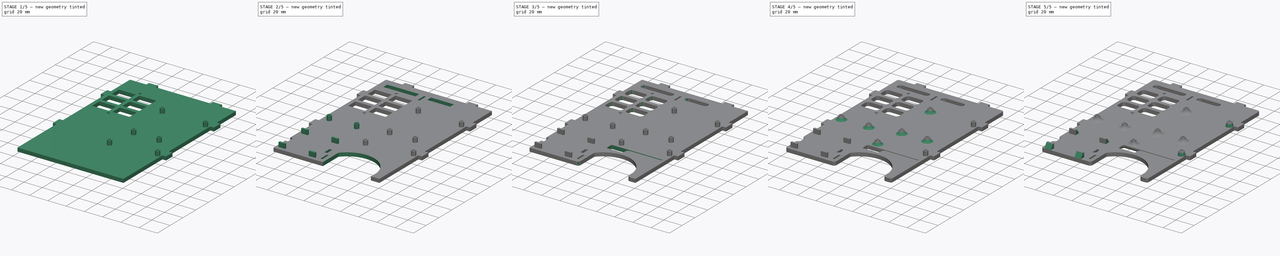
[diagram: build sequence overview — one tinted view per stage of 5, left to right]
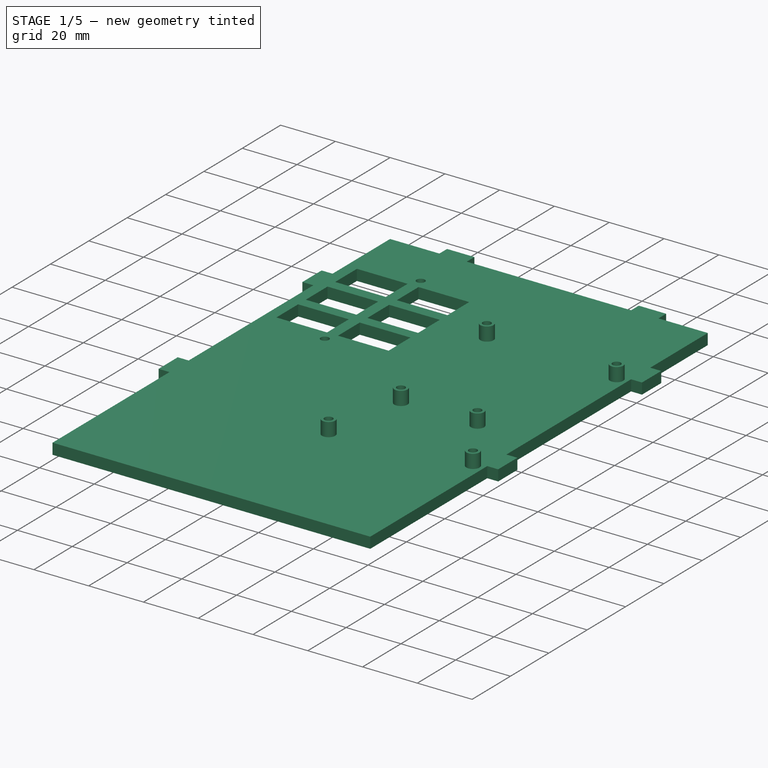
[diagram: stage 1 of 5 — iso view after this stage's code; geometry added in this stage tinted green]
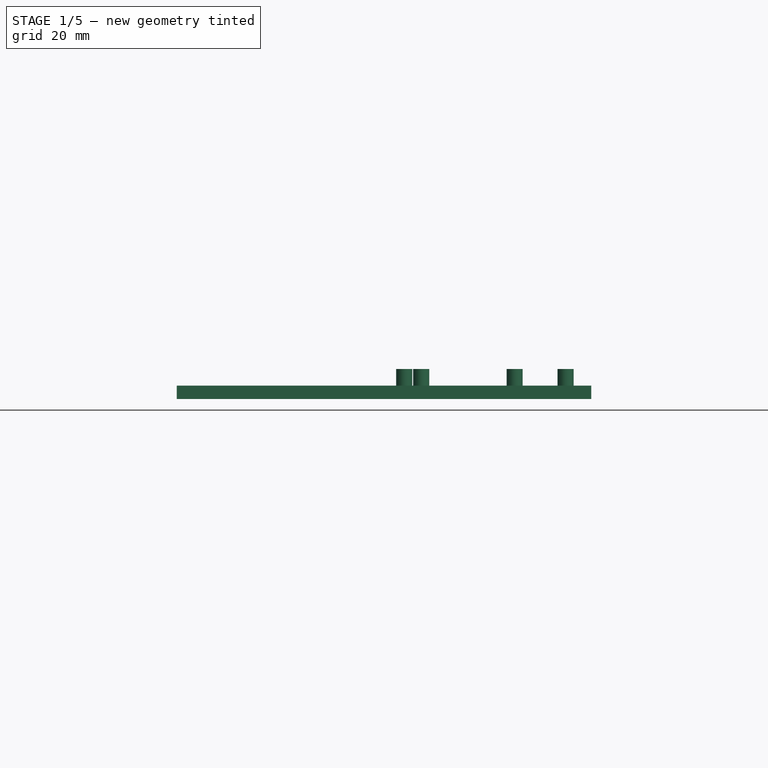
[diagram: stage 1 of 5 — front view after this stage's code; geometry added in this stage tinted green]
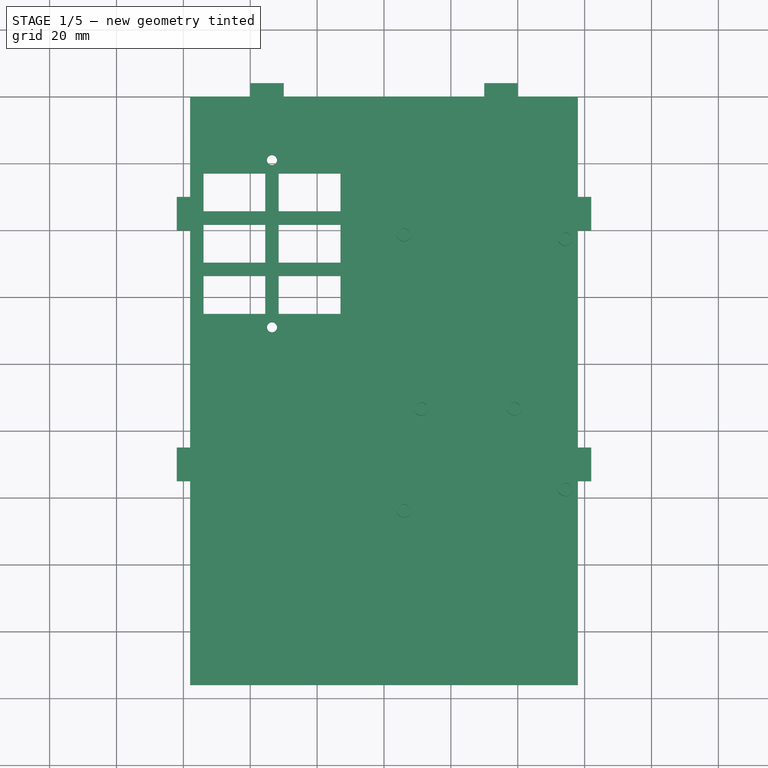
[diagram: stage 1 of 5 — top view after this stage's code; geometry added in this stage tinted green]
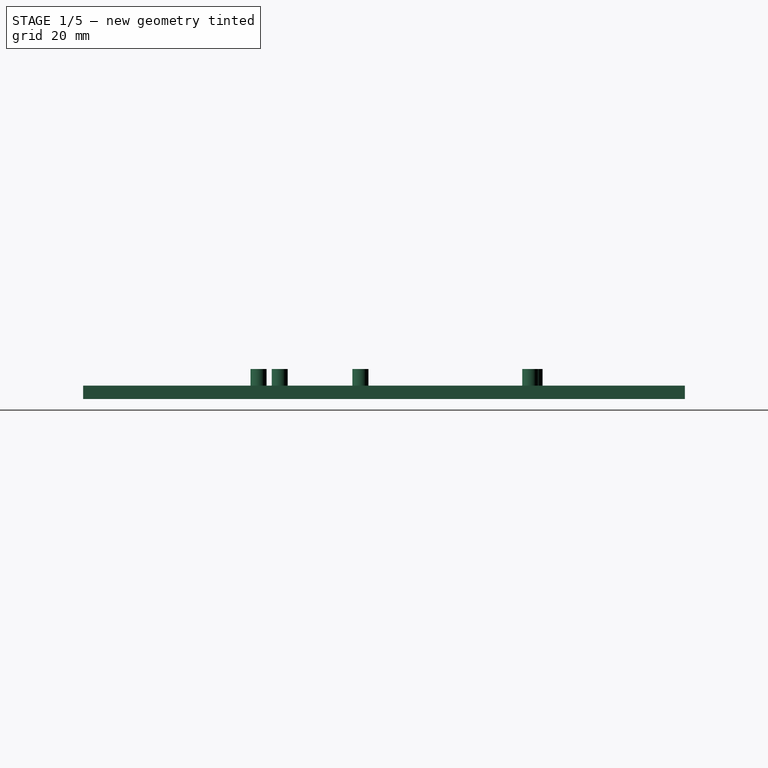
[diagram: stage 1 of 5 — right view after this stage's code; geometry added in this stage tinted green]
FCSTD DOCUMENT  (FreeCAD 0.18R16131 (Git))
Label: HBlock2_1_Alt
License: All rights reserved
LicenseURL: http://en.wikipedia.org/wiki/All_rights_reserved
objects: Sketcher::SketchObject×13, PartDesign::Fillet×9, PartDesign::Pocket×8, PartDesign::Plane×7, PartDesign::Pad×5, PartDesign::Draft×2, PartDesign::Body×1, App::Part×1, Part::FeaturePython×1
note: 59 computed .brp shape members not serialized (recipe doc carries the construction recipe); baked Part::Feature solids carry a one-line shape summary decoded from their .brp

FEATURE [Sketcher::SketchObject] Sketch
  MapMode = 5
  Support = -> [XY_Plane001]
  sketch-geometry (7):
    g0: LineSegment [constr] StartX=-62 StartY=0 StartZ=0 EndX=62 EndY=0 EndZ=0
    g1: LineSegment StartX=62 StartY=0 StartZ=0 EndX=62 EndY=124 EndZ=0
    g2: LineSegment StartX=62 StartY=124 StartZ=0 EndX=-62 EndY=124 EndZ=0
    g3: LineSegment StartX=-62 StartY=124 StartZ=0 EndX=-62 EndY=0 EndZ=0
    g4: LineSegment StartX=-62 StartY=0 StartZ=0 EndX=-62 EndY=-56 EndZ=0
    g5: LineSegment StartX=-62 StartY=-56 StartZ=0 EndX=62 EndY=-56 EndZ=0
    g6: LineSegment StartX=62 StartY=-56 StartZ=0 EndX=62 EndY=0 EndZ=0
  constraints (19):
    c: Coincident(g0,g1)
    c: Coincident(g1,g2)
    c: Coincident(g2,g3)
    c: Coincident(g3,g0)
    c: Horizontal(g0)
    c: Vertical(g1)
    c: Vertical(g3)
    c: PointOnObject(g0,g-1)
    c: Symmetric(g2,g1,g-2)
    c: Distance(g2) = 124
    c: Distance(g3) = 124
    c: Coincident(g4,g3)
    c: Vertical(g4)
    c: Coincident(g5,g4)
    c: Horizontal(g5)
    c: Coincident(g6,g5)
    c: Coincident(g6,g1)
    c: Vertical(g6)
    c: Distance(g4) = 56
FEATURE [PartDesign::Pad] Pad
  Length = 4
  Length2 = 100
  Midplane = true
  Profile = -> Sketch
  Type = 0
FEATURE [Sketcher::SketchObject] Sketch004
  MapMode = 5
  Support = -> [XY_Plane001]
  sketch-geometry (30):
    g0: LineSegment StartX=-58 StartY=5 StartZ=0 EndX=-62 EndY=5 EndZ=0
    g1: LineSegment StartX=-62 StartY=5 StartZ=0 EndX=-62 EndY=15 EndZ=0
    g2: LineSegment StartX=-62 StartY=15 StartZ=0 EndX=-58 EndY=15 EndZ=0
    g3: LineSegment StartX=-58 StartY=15 StartZ=0 EndX=-58 EndY=80 EndZ=0
    g4: LineSegment StartX=-58 StartY=80 StartZ=0 EndX=-62 EndY=80 EndZ=0
    g5: LineSegment StartX=-62 StartY=80 StartZ=0 EndX=-62 EndY=90 EndZ=0
    g6: LineSegment StartX=-62 StartY=90 StartZ=0 EndX=-58 EndY=90 EndZ=0
    g7: LineSegment StartX=-58 StartY=90 StartZ=0 EndX=-58 EndY=124 EndZ=0
    g8: LineSegment StartX=-58 StartY=124 StartZ=0 EndX=-88 EndY=124 EndZ=0
    g9: LineSegment StartX=-88 StartY=124 StartZ=0 EndX=-88 EndY=0 EndZ=0
    g10: LineSegment [constr] StartX=-88 StartY=0 StartZ=0 EndX=-58 EndY=0 EndZ=0
    g11: LineSegment StartX=-58 StartY=5 StartZ=0 EndX=-58 EndY=0 EndZ=0
    g12: LineSegment StartX=58 StartY=5 StartZ=0 EndX=62 EndY=5 EndZ=0
    g13: LineSegment StartX=62 StartY=5 StartZ=0 EndX=62 EndY=15 EndZ=0
    g14: LineSegment StartX=62 StartY=15 StartZ=0 EndX=58 EndY=15 EndZ=0
    g15: LineSegment StartX=58 StartY=15 StartZ=0 EndX=58 EndY=80 EndZ=0
    g16: LineSegment StartX=58 StartY=80 StartZ=0 EndX=62 EndY=80 EndZ=0
    g17: LineSegment StartX=62 StartY=80 StartZ=0 EndX=62 EndY=90 EndZ=0
    g18: LineSegment StartX=62 StartY=90 StartZ=0 EndX=58 EndY=90 EndZ=0
    g19: LineSegment StartX=58 StartY=90 StartZ=0 EndX=58 EndY=124 EndZ=0
    g20: LineSegment StartX=58 StartY=124 StartZ=0 EndX=88 EndY=124 EndZ=0
    g21: LineSegment StartX=88 StartY=124 StartZ=0 EndX=88 EndY=0 EndZ=0
    g22: LineSegment [constr] StartX=88 StartY=0 StartZ=0 EndX=58 EndY=0 EndZ=0
    g23: LineSegment StartX=58 StartY=5 StartZ=0 EndX=58 EndY=0 EndZ=0
    g24: LineSegment StartX=-88 StartY=0 StartZ=0 EndX=-88 EndY=-60 EndZ=0
    g25: LineSegment StartX=-88 StartY=-60 StartZ=0 EndX=-58 EndY=-60 EndZ=0
    g26: LineSegment StartX=-58 StartY=-60 StartZ=0 EndX=-58 EndY=0 EndZ=0
    g27: LineSegment StartX=58 StartY=0 StartZ=0 EndX=58 EndY=-60 EndZ=0
    g28: LineSegment StartX=58 StartY=-60 StartZ=0 EndX=88 EndY=-60 EndZ=0
    g29: LineSegment StartX=88 StartY=-60 StartZ=0 EndX=88 EndY=0 EndZ=0
  constraints (87):
    c: Coincident(g1,g0)
    c: Vertical(g1)
    c: Coincident(g2,g1)
    c: Horizontal(g2)
    c: Coincident(g3,g2)
    c: Vertical(g3)
    c: Coincident(g4,g3)
    c: Coincident(g5,g4)
    c: Vertical(g5)
    c: Coincident(g6,g5)
    c: Horizontal(g6)
    c: Coincident(g7,g6)
    c: Vertical(g7)
    c: Coincident(g8,g7)
    c: Horizontal(g8)
    c: Coincident(g9,g8)
    c: PointOnObject(g9,g-1)
    c: Vertical(g9)
    c: Coincident(g10,g9)
    c: Horizontal(g10)
    c: Horizontal(g0)
    c: Coincident(g11,g0)
    c: Coincident(g11,g10)
    c: Vertical(g11)
    c: Horizontal(g4)
    c: Equal(g0,g2)
    c: Equal(g2,g4)
    c: Equal(g4,g6)
    c: Equal(g5,g1)
    c: Distance(g6) = 4
    c: Distance(g5) = 10
    c: Distance(g11) = 5
    c: Distance(g7) = 34
    c: Distance(g8) = 30
    c: Distance(g9) = 124
    c: Coincident(g13,g12)
    c: Vertical(g13)
    c: Coincident(g14,g13)
    c: Horizontal(g14)
    c: Coincident(g15,g14)
    c: Vertical(g15)
    c: Coincident(g16,g15)
    c: Coincident(g17,g16)
    c: Vertical(g17)
    c: Coincident(g18,g17)
    c: Horizontal(g18)
    c: Coincident(g19,g18)
    c: Vertical(g19)
    c: Coincident(g20,g19)
    c: Horizontal(g20)
    c: Coincident(g21,g20)
    c: Vertical(g21)
    c: Coincident(g22,g21)
    c: Horizontal(g22)
    c: Horizontal(g12)
    c: Coincident(g23,g12)
    c: Coincident(g23,g22)
    c: Vertical(g23)
    c: Horizontal(g16)
    c: Equal(g12,g14)
    c: Equal(g14,g16)
    c: Equal(g16,g18)
    c: Equal(g17,g13)
    c: Distance(g18) = 4
    c: Distance(g17) = 10
    c: Distance(g23) = 5
    c: Distance(g19) = 34
    c: Distance(g20) = 30
    c: Distance(g21) = 124
    c: Symmetric(g22,g10,g-2)
    c: Distance(g10,g22) = 116
    c: Coincident(g24,g9)
    c: Vertical(g24)
    c: Coincident(g25,g24)
    c: Horizontal(g25)
    c: Coincident(g26,g25)
    c: Coincident(g26,g11)
    c: Vertical(g26)
    c: Coincident(g27,g23)
    c: Vertical(g27)
    c: Coincident(g28,g27)
    c: Horizontal(g28)
    c: Coincident(g29,g28)
    c: Coincident(g29,g21)
    c: Vertical(g29)
    c: Equal(g26,g27)
    c: Distance(g24) = 60
FEATURE [Sketcher::SketchObject] Sketch005
  MapMode = 5
  Support = -> [XY_Plane001]
  sketch-geometry (12):
    g0: LineSegment StartX=-62 StartY=120 StartZ=0 EndX=-40 EndY=120 EndZ=0
    g1: LineSegment StartX=-40 StartY=120 StartZ=0 EndX=-40 EndY=124 EndZ=0
    g2: LineSegment StartX=-40 StartY=124 StartZ=0 EndX=-30 EndY=124 EndZ=0
    g3: LineSegment StartX=-30 StartY=124 StartZ=0 EndX=-30 EndY=120 EndZ=0
    g4: LineSegment StartX=-30 StartY=120 StartZ=0 EndX=30 EndY=120 EndZ=0
    g5: LineSegment StartX=30 StartY=120 StartZ=0 EndX=30 EndY=124 EndZ=0
    g6: LineSegment StartX=30 StartY=124 StartZ=0 EndX=40 EndY=124 EndZ=0
    g7: LineSegment StartX=40 StartY=124 StartZ=0 EndX=40 EndY=120 EndZ=0
    g8: LineSegment StartX=40 StartY=120 StartZ=0 EndX=62 EndY=120 EndZ=0
    g9: LineSegment StartX=62 StartY=120 StartZ=0 EndX=62 EndY=130 EndZ=0
    g10: LineSegment StartX=62 StartY=130 StartZ=0 EndX=-62 EndY=130 EndZ=0
    g11: LineSegment StartX=-62 StartY=130 StartZ=0 EndX=-62 EndY=120 EndZ=0
  constraints (34):
    c: Horizontal(g0)
    c: Coincident(g1,g0)
    c: Vertical(g1)
    c: Coincident(g2,g1)
    c: Horizontal(g2)
    c: Coincident(g3,g2)
    c: Vertical(g3)
    c: Coincident(g4,g3)
    c: Coincident(g5,g4)
    c: Coincident(g6,g5)
    c: Horizontal(g6)
    c: Coincident(g7,g6)
    c: Vertical(g7)
    c: Coincident(g8,g7)
    c: Horizontal(g8)
    c: Coincident(g9,g8)
    c: Vertical(g9)
    c: Coincident(g10,g9)
    c: Coincident(g11,g10)
    c: Coincident(g11,g0)
    c: Vertical(g5)
    c: Vertical(g11)
    c: Equal(g1,g3)
    c: Equal(g3,g5)
    c: Equal(g5,g7)
    c: Equal(g2,g6)
    c: Distance(g11) = 10
    c: Distance(g1) = 4
    c: Distance(g2) = 10
    c: Symmetric(g3,g4,g-2)
    c: Distance(g4,g3) = 60
    c: Symmetric(g10,g9,g-2)
    c: Distance(g10) = 124
    c: DistanceY(g-1,g0) = 120
FEATURE [PartDesign::Pocket] Pocket001
  BaseFeature = -> Pad
  Length = 5
  Length2 = 100
  Midplane = true
  Profile = -> Sketch005
  Type = 1
FEATURE [PartDesign::Pocket] Pocket
  BaseFeature = -> Pocket001
  Length = 5
  Length2 = 100
  Midplane = true
  Profile = -> Sketch004
  Type = 1
FEATURE [PartDesign::Plane] DatumPlane  label="AtmegaPlane"
  AttachmentOffset = pos=(3.5,93,2) rot=(0,0,-1;1.5708rad)
  Length = 209.88
  MapMode = 5
  Placement = pos=(3.5,93,2) rot=(0,0,-1;1.5708rad)
  ResizeMode = 0
  Support = -> [XY_Plane001]
  Width = 153.88
FEATURE [Sketcher::SketchObject] Sketch006  label="AtmegaSketch"
  MapMode = 5
  Placement = pos=(3.5,93,2) rot=(0,0,-1;1.5708rad)
  Support = -> [DatumPlane]
  sketch-geometry (19):
    g0: LineSegment [constr] StartX=0 StartY=0 StartZ=0 EndX=101.6 EndY=0 EndZ=0
    g1: LineSegment [constr] StartX=101.6 StartY=0 StartZ=0 EndX=101.6 EndY=53.34 EndZ=0
    g2: LineSegment [constr] StartX=101.6 StartY=53.34 StartZ=0 EndX=0 EndY=53.34 EndZ=0
    g3: LineSegment [constr] StartX=0 StartY=53.34 StartZ=0 EndX=0 EndY=0 EndZ=0
    g4: Circle CenterX=13.97 CenterY=2.54 CenterZ=0 NormalX=0 NormalY=0 NormalZ=1 AngleXU=0 Radius=1.5
    g5: Circle CenterX=15.24 CenterY=50.8 CenterZ=0 NormalX=0 NormalY=0 NormalZ=1 AngleXU=0 Radius=1.5
    g6: Circle CenterX=90.17 CenterY=50.8 CenterZ=0 NormalX=0 NormalY=0 NormalZ=1 AngleXU=0 Radius=1.5
    g7: Circle CenterX=96.52 CenterY=2.54 CenterZ=0 NormalX=0 NormalY=0 NormalZ=1 AngleXU=0 Radius=1.5
    g8: Circle CenterX=66.04 CenterY=35.56 CenterZ=0 NormalX=0 NormalY=0 NormalZ=1 AngleXU=0 Radius=1.5
    g9: Circle CenterX=66.04 CenterY=7.62 CenterZ=0 NormalX=0 NormalY=0 NormalZ=1 AngleXU=0 Radius=1.5
    g10: LineSegment [constr] StartX=66.04 StartY=35.56 StartZ=0 EndX=66.04 EndY=7.62 EndZ=0
    g11: LineSegment [constr] StartX=15.24 StartY=50.8 StartZ=0 EndX=90.17 EndY=50.8 EndZ=0
    g12: LineSegment [constr] StartX=13.97 StartY=2.54 StartZ=0 EndX=96.52 EndY=2.54 EndZ=0
    g13: Circle CenterX=15.24 CenterY=50.8 CenterZ=0 NormalX=0 NormalY=0 NormalZ=1 AngleXU=0 Radius=2.4
    g14: Circle CenterX=13.97 CenterY=2.54 CenterZ=0 NormalX=0 NormalY=0 NormalZ=1 AngleXU=0 Radius=2.4
    g15: Circle CenterX=96.52 CenterY=2.54 CenterZ=0 NormalX=0 NormalY=0 NormalZ=1 AngleXU=0 Radius=2.4
    g16: Circle CenterX=66.04 CenterY=7.62 CenterZ=0 NormalX=0 NormalY=0 NormalZ=1 AngleXU=0 Radius=2.4
    g17: Circle CenterX=66.04 CenterY=35.56 CenterZ=0 NormalX=0 NormalY=0 NormalZ=1 AngleXU=0 Radius=2.4
    g18: Circle CenterX=90.17 CenterY=50.8 CenterZ=0 NormalX=0 NormalY=0 NormalZ=1 AngleXU=0 Radius=2.4
  constraints (47):
    c: Coincident(g0,g1)
    c: Coincident(g1,g2)
    c: Coincident(g2,g3)
    c: Coincident(g3,g0)
    c: Horizontal(g0)
    c: Horizontal(g2)
    c: Vertical(g1)
    c: Vertical(g3)
    c: Coincident(g0,g-1)
    c: Distance(g0) = 101.6
    c: Distance(g3) = 53.34
    c: Radius(g5) = 1.5
    c: Equal(g5,g8)
    c: Equal(g5,g6)
    c: Equal(g5,g9)
    c: Equal(g5,g7)
    c: Equal(g5,g4)
    c: DistanceX(g-2,g4) = 13.97
    c: DistanceX(g4,g5) = 1.27
    c: DistanceX(g5,g8) = 50.8
    c: Coincident(g10,g8)
    c: Coincident(g10,g9)
    c: Vertical(g10)
    c: DistanceX(g8,g6) = 24.13
    c: Coincident(g11,g5)
    c: Coincident(g11,g6)
    c: Horizontal(g11)
    c: Coincident(g12,g4)
    c: Coincident(g12,g7)
    c: Horizontal(g12)
    c: DistanceY(g8,g6) = 15.24
    c: Distance(g10) = 27.94
    c: DistanceY(g7,g9) = 5.08
    c: DistanceY(g0,g7) = 2.54
    c: DistanceX(g-2,g7) = 96.52
    c: Coincident(g13,g5)
    c: Coincident(g14,g4)
    c: Coincident(g15,g7)
    c: Coincident(g16,g9)
    c: Coincident(g17,g8)
    c: Coincident(g18,g6)
    c: Equal(g18,g17)
    c: Equal(g17,g16)
    c: Equal(g16,g15)
    c: Equal(g15,g14)
    c: Equal(g14,g13)
    c: Radius(g14) = 2.4
FEATURE [PartDesign::Pad] Pad001  label="AtmegaPad"
  BaseFeature = -> Pocket
  Length = 5
  Length2 = 100
  Profile = -> Sketch006
  Type = 0
FEATURE [PartDesign::Plane] DatumPlane001  label="RelayPlane"
  AttachmentOffset = pos=(-56,106,0) rot=(0,0,-1;1.5708rad)
  Length = 209.88
  MapMode = 5
  Placement = pos=(-56,106,0) rot=(0,0,-1;1.5708rad)
  ResizeMode = 0
  Support = -> [XY_Plane001]
  Width = 153.88
FEATURE [Sketcher::SketchObject] Sketch007  label="RelaySketch"
  MapMode = 5
  Placement = pos=(-56,106,0) rot=(0,0,-1;1.5708rad)
  Support = -> [DatumPlane001]
  sketch-geometry (37):
    g0: LineSegment [constr] StartX=0 StartY=0 StartZ=0 EndX=60 EndY=0 EndZ=0
    g1: LineSegment [constr] StartX=60 StartY=0 StartZ=0 EndX=60 EndY=45 EndZ=0
    g2: LineSegment [constr] StartX=60 StartY=45 StartZ=0 EndX=0 EndY=45 EndZ=0
    g3: LineSegment [constr] StartX=0 StartY=45 StartZ=0 EndX=0 EndY=0 EndZ=0
    g4: Circle CenterX=5 CenterY=22.5 CenterZ=0 NormalX=0 NormalY=0 NormalZ=1 AngleXU=0 Radius=1.5
    g5: Circle CenterX=55 CenterY=22.5 CenterZ=0 NormalX=0 NormalY=0 NormalZ=1 AngleXU=0 Radius=1.5
    g6: LineSegment [constr] StartX=5 StartY=22.5 StartZ=0 EndX=55 EndY=22.5 EndZ=0
    g7: LineSegment StartX=9 StartY=43 StartZ=0 EndX=20.3333 EndY=43 EndZ=0
    g8: LineSegment StartX=20.3333 StartY=43 StartZ=0 EndX=20.3333 EndY=24.5 EndZ=0
    g9: LineSegment StartX=20.3333 StartY=24.5 StartZ=0 EndX=9 EndY=24.5 EndZ=0
    g10: LineSegment StartX=9 StartY=24.5 StartZ=0 EndX=9 EndY=43 EndZ=0
    g11: LineSegment StartX=24.3333 StartY=43 StartZ=0 EndX=35.6667 EndY=43 EndZ=0
    g12: LineSegment StartX=35.6667 StartY=43 StartZ=0 EndX=35.6667 EndY=24.5 EndZ=0
    g13: LineSegment StartX=35.6667 StartY=24.5 StartZ=0 EndX=24.3333 EndY=24.5 EndZ=0
    g14: LineSegment StartX=24.3333 StartY=24.5 StartZ=0 EndX=24.3333 EndY=43 EndZ=0
    g15: LineSegment StartX=39.6667 StartY=43 StartZ=0 EndX=51 EndY=43 EndZ=0
    g16: LineSegment StartX=51 StartY=43 StartZ=0 EndX=51 EndY=24.5 EndZ=0
    g17: LineSegment StartX=51 StartY=24.5 StartZ=0 EndX=39.6667 EndY=24.5 EndZ=0
    g18: LineSegment StartX=39.6667 StartY=24.5 StartZ=0 EndX=39.6667 EndY=43 EndZ=0
    g19: LineSegment StartX=9 StartY=20.5 StartZ=0 EndX=20.3333 EndY=20.5 EndZ=0
    g20: LineSegment StartX=20.3333 StartY=20.5 StartZ=0 EndX=20.3333 EndY=2 EndZ=0
    g21: LineSegment StartX=20.3333 StartY=2 StartZ=0 EndX=9 EndY=2 EndZ=0
    g22: LineSegment StartX=9 StartY=2 StartZ=0 EndX=9 EndY=20.5 EndZ=0
    g23: LineSegment StartX=24.3333 StartY=20.5 StartZ=0 EndX=35.6667 EndY=20.5 EndZ=0
    g24: LineSegment StartX=35.6667 StartY=20.5 StartZ=0 EndX=35.6667 EndY=2 EndZ=0
    g25: LineSegment StartX=35.6667 StartY=2 StartZ=0 EndX=24.3333 EndY=2 EndZ=0
    g26: LineSegment StartX=24.3333 StartY=2 StartZ=0 EndX=24.3333 EndY=20.5 EndZ=0
    g27: LineSegment StartX=39.6667 StartY=20.5 StartZ=0 EndX=51 EndY=20.5 EndZ=0
    g28: LineSegment StartX=51 StartY=20.5 StartZ=0 EndX=51 EndY=2 EndZ=0
    g29: LineSegment StartX=51 StartY=2 StartZ=0 EndX=39.6667 EndY=2 EndZ=0
    g30: LineSegment StartX=39.6667 StartY=2 StartZ=0 EndX=39.6667 EndY=20.5 EndZ=0
    g31: LineSegment [constr] StartX=20.3333 StartY=24.5 StartZ=0 EndX=24.3333 EndY=24.5 EndZ=0
    g32: LineSegment [constr] StartX=35.6667 StartY=24.5 StartZ=0 EndX=39.6667 EndY=24.5 EndZ=0
    g33: LineSegment [constr] StartX=35.6667 StartY=20.5 StartZ=0 EndX=39.6667 EndY=20.5 EndZ=0
    g34: LineSegment [constr] StartX=20.3333 StartY=20.5 StartZ=0 EndX=24.3333 EndY=20.5 EndZ=0
    g35: LineSegment [constr] StartX=35.6667 StartY=20.5 StartZ=0 EndX=35.6667 EndY=22.5 EndZ=0
    g36: LineSegment [constr] StartX=35.6667 StartY=2 StartZ=0 EndX=35.6667 EndY=0 EndZ=0
  constraints (104):
    c: Coincident(g0,g1)
    c: Coincident(g1,g2)
    c: Coincident(g2,g3)
    c: Coincident(g3,g0)
    c: Horizontal(g0)
    c: Horizontal(g2)
    c: Vertical(g1)
    c: Vertical(g3)
    c: Coincident(g0,g-1)
    c: Coincident(g6,g4)
    c: Coincident(g6,g5)
    c: Horizontal(g6)
    c: Equal(g4,g5)
    c: Radius(g4) = 1.5
    c: Distance(g3) = 45
    c: Distance(g2) = 60
    c: Distance(g6) = 50
    c: Distance(g4,g3) = 5
    c: Distance(g4,g0) = 22.5
    c: Coincident(g7,g8)
    c: Coincident(g8,g9)
    c: Coincident(g9,g10)
    c: Coincident(g10,g7)
    c: Horizontal(g7)
    c: Horizontal(g9)
    c: Vertical(g8)
    c: Vertical(g10)
    c: Coincident(g11,g12)
    c: Coincident(g12,g13)
    c: Coincident(g13,g14)
    c: Coincident(g14,g11)
    c: Horizontal(g11)
    c: Horizontal(g13)
    c: Vertical(g12)
    c: Vertical(g14)
    c: Coincident(g15,g16)
    c: Coincident(g16,g17)
    c: Coincident(g17,g18)
    c: Coincident(g18,g15)
    c: Horizontal(g15)
    c: Horizontal(g17)
    c: Vertical(g16)
    c: Vertical(g18)
    c: Coincident(g19,g20)
    c: Coincident(g20,g21)
    c: Coincident(g21,g22)
    c: Coincident(g22,g19)
    c: Horizontal(g19)
    c: Horizontal(g21)
    c: Vertical(g20)
    c: Vertical(g22)
    c: Coincident(g23,g24)
    c: Coincident(g24,g25)
    c: Coincident(g25,g26)
    c: Coincident(g26,g23)
    c: Horizontal(g23)
    c: Horizontal(g25)
    c: Vertical(g24)
    c: Vertical(g26)
    c: Coincident(g27,g28)
    c: Coincident(g28,g29)
    c: Coincident(g29,g30)
    c: Coincident(g30,g27)
    c: Horizontal(g27)
    c: Horizontal(g29)
    c: Vertical(g28)
    c: Vertical(g30)
    c: Equal(g19,g9)
    c: Equal(g9,g13)
    c: Equal(g13,g23)
    c: Equal(g23,g17)
    c: Equal(g17,g27)
    c: Equal(g10,g22)
    c: Equal(g22,g14)
    c: Equal(g14,g26)
    c: Equal(g26,g18)
    c: Equal(g18,g30)
    c: Coincident(g31,g8)
    c: Coincident(g31,g13)
    c: Horizontal(g31)
    c: Coincident(g32,g12)
    c: Coincident(g32,g17)
    c: Coincident(g33,g23)
    c: Coincident(g33,g27)
    c: Coincident(g34,g19)
    c: Coincident(g34,g23)
    c: Horizontal(g34)
    c: Horizontal(g32)
    c: Horizontal(g33)
    c: Equal(g31,g32)
    c: Equal(g32,g33)
    c: Equal(g33,g34)
    c: Symmetric(g19,g9,g6)
    c: Coincident(g35,g23)
    c: PointOnObject(g35,g6)
    c: Vertical(g35)
    c: Coincident(g36,g24)
    c: PointOnObject(g36,g0)
    c: Vertical(g36)
    c: Equal(g35,g36)
    c: Distance(g34) = 4
    c: Distance(g36) = 2
    c: DistanceX(g4,g19) = 4
    c: DistanceX(g27,g5) = 4
FEATURE [PartDesign::Pocket] Pocket002  label="RelayPocket"
  BaseFeature = -> Pad001
  Length = 5
  Length2 = 100
  Midplane = true
  Profile = -> Sketch007
  Type = 1
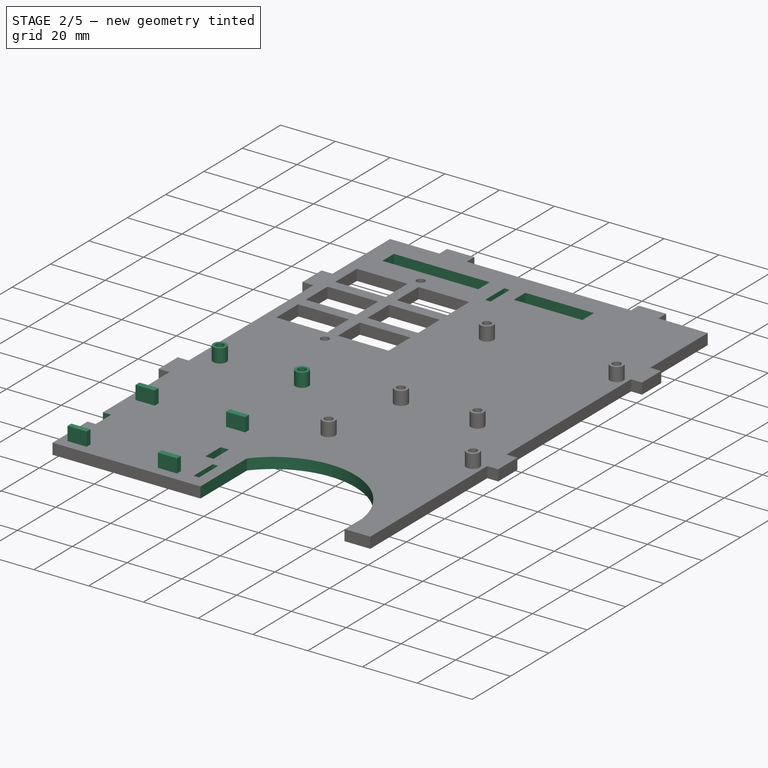
[diagram: stage 2 of 5 — iso view after this stage's code; geometry added in this stage tinted green]
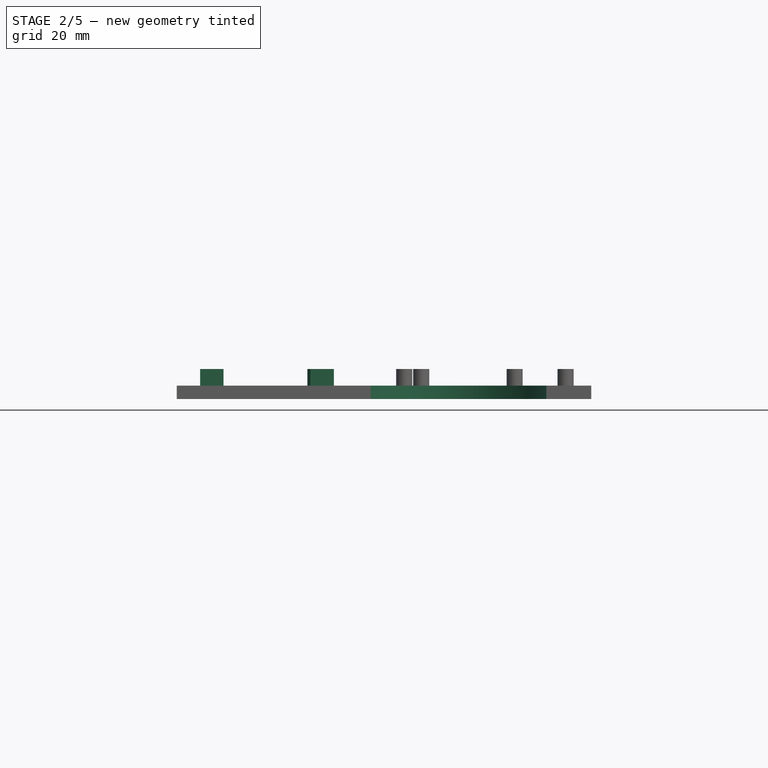
[diagram: stage 2 of 5 — front view after this stage's code; geometry added in this stage tinted green]
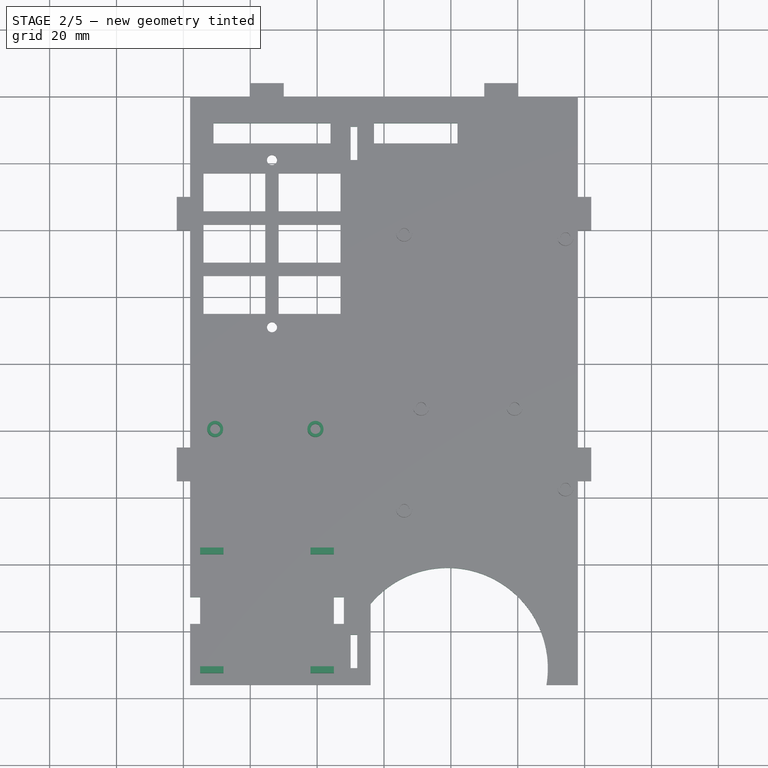
[diagram: stage 2 of 5 — top view after this stage's code; geometry added in this stage tinted green]
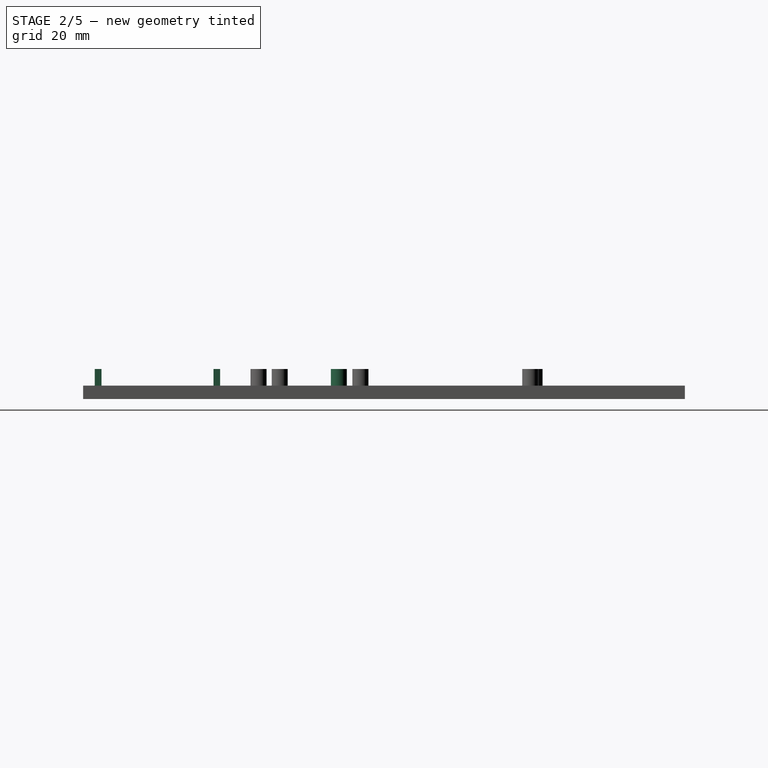
[diagram: stage 2 of 5 — right view after this stage's code; geometry added in this stage tinted green]
FEATURE [PartDesign::Plane] DatumPlane002  label="VRPlane"
  AttachmentOffset = pos=(-53,6,2) rot=(0,0,1;0rad)
  Length = 153.88
  MapMode = 5
  Placement = pos=(-53,6,2) rot=(0,0,1;0rad)
  ResizeMode = 0
  Support = -> [XY_Plane001]
  Width = 209.88
FEATURE [Sketcher::SketchObject] Sketch008  label="VRSketch"
  MapMode = 5
  Placement = pos=(-53,6,2) rot=(0,0,1;0rad)
  Support = -> [DatumPlane002]
  sketch-geometry (9):
    g0: LineSegment [constr] StartX=0 StartY=0 StartZ=0 EndX=35 EndY=0 EndZ=0
    g1: LineSegment [constr] StartX=35 StartY=0 StartZ=0 EndX=35 EndY=17 EndZ=0
    g2: LineSegment [constr] StartX=35 StartY=17 StartZ=0 EndX=0 EndY=17 EndZ=0
    g3: LineSegment [constr] StartX=0 StartY=17 StartZ=0 EndX=0 EndY=0 EndZ=0
    g4: Circle CenterX=2.5 CenterY=14.5 CenterZ=0 NormalX=0 NormalY=0 NormalZ=1 AngleXU=0 Radius=1.5
    g5: Circle CenterX=32.5 CenterY=14.5 CenterZ=0 NormalX=0 NormalY=0 NormalZ=1 AngleXU=0 Radius=1.5
    g6: LineSegment [constr] StartX=2.5 StartY=14.5 StartZ=0 EndX=32.5 EndY=14.5 EndZ=0
    g7: Circle CenterX=2.5 CenterY=14.5 CenterZ=0 NormalX=0 NormalY=0 NormalZ=1 AngleXU=0 Radius=2.4
    g8: Circle CenterX=32.5 CenterY=14.5 CenterZ=0 NormalX=0 NormalY=0 NormalZ=1 AngleXU=0 Radius=2.4
  constraints (23):
    c: Coincident(g0,g1)
    c: Coincident(g1,g2)
    c: Coincident(g2,g3)
    c: Coincident(g3,g0)
    c: Horizontal(g0)
    c: Horizontal(g2)
    c: Vertical(g1)
    c: Vertical(g3)
    c: Coincident(g0,g-1)
    c: Distance(g3) = 17
    c: Distance(g2) = 35
    c: Coincident(g6,g4)
    c: Coincident(g6,g5)
    c: Horizontal(g6)
    c: Distance(g6) = 30
    c: Equal(g4,g5)
    c: Radius(g4) = 1.5
    c: Distance(g4,g2) = 2.5
    c: Distance(g4,g3) = 2.5
    c: Coincident(g7,g4)
    c: Coincident(g8,g5)
    c: Equal(g7,g8)
    c: Radius(g7) = 2.4
FEATURE [PartDesign::Pad] Pad002  label="VRPad"
  BaseFeature = -> Pocket002
  Length = 5
  Length2 = 100
  Profile = -> Sketch008
  Type = 0
FEATURE [PartDesign::Plane] DatumPlane003  label="TFPlane"
  AttachmentOffset = pos=(-55,-17,2) rot=(0,0,-1;1.5708rad)
  Length = 209.88
  MapMode = 5
  Placement = pos=(-55,-17,2) rot=(0,0,-1;1.5708rad)
  ResizeMode = 0
  Support = -> [XY_Plane001]
  Width = 153.88
FEATURE [Sketcher::SketchObject] Sketch009  label="TFHolesSketch"
  MapMode = 5
  Placement = pos=(-55,-17,2) rot=(0,0,-1;1.5708rad)
  Support = -> [DatumPlane003]
  sketch-geometry (15):
    g0: LineSegment [constr] StartX=0 StartY=0 StartZ=0 EndX=33.5 EndY=0 EndZ=0
    g1: LineSegment [constr] StartX=33.5 StartY=0 StartZ=0 EndX=33.5 EndY=40 EndZ=0
    g2: LineSegment [constr] StartX=33.5 StartY=40 StartZ=0 EndX=0 EndY=40 EndZ=0
    g3: LineSegment [constr] StartX=0 StartY=40 StartZ=0 EndX=0 EndY=0 EndZ=0
    g4: LineSegment StartX=12.75 StartY=40 StartZ=0 EndX=20.75 EndY=40 EndZ=0
    g5: LineSegment StartX=20.75 StartY=40 StartZ=0 EndX=20.75 EndY=43 EndZ=0
    g6: LineSegment StartX=20.75 StartY=43 StartZ=0 EndX=12.75 EndY=43 EndZ=0
    g7: LineSegment StartX=12.75 StartY=43 StartZ=0 EndX=12.75 EndY=40 EndZ=0
    g8: LineSegment StartX=12.75 StartY=0 StartZ=0 EndX=20.75 EndY=0 EndZ=0
    g9: LineSegment StartX=20.75 StartY=0 StartZ=0 EndX=20.75 EndY=-3 EndZ=0
    g10: LineSegment StartX=20.75 StartY=-3 StartZ=0 EndX=12.75 EndY=-3 EndZ=0
    g11: LineSegment StartX=12.75 StartY=-3 StartZ=0 EndX=12.75 EndY=0 EndZ=0
    g12: LineSegment [constr] StartX=12.75 StartY=40 StartZ=0 EndX=0 EndY=0 EndZ=0
    g13: LineSegment [constr] StartX=20.75 StartY=40 StartZ=0 EndX=33.5 EndY=0 EndZ=0
    g14: LineSegment [constr] StartX=12.75 StartY=40 StartZ=0 EndX=12.75 EndY=0 EndZ=0
  constraints (41):
    c: Coincident(g0,g1)
    c: Coincident(g1,g2)
    c: Coincident(g2,g3)
    c: Coincident(g3,g0)
    c: Horizontal(g0)
    c: Horizontal(g2)
    c: Vertical(g1)
    c: Vertical(g3)
    c: Distance(g3) = 40
    c: Distance(g2) = 33.5
    c: Coincident(g0,g-1)
    c: Coincident(g4,g5)
    c: Coincident(g5,g6)
    c: Coincident(g6,g7)
    c: Coincident(g7,g4)
    c: Horizontal(g4)
    c: Horizontal(g6)
    c: Vertical(g5)
    c: Vertical(g7)
    c: PointOnObject(g4,g2)
    c: Coincident(g8,g9)
    c: Coincident(g9,g10)
    c: Coincident(g10,g11)
    c: Coincident(g11,g8)
    c: Horizontal(g8)
    c: Horizontal(g10)
    c: Vertical(g9)
    c: Vertical(g11)
    c: PointOnObject(g8,g0)
    c: Equal(g4,g8)
    c: Distance(g8) = 8
    c: Equal(g11,g7)
    c: Distance(g7) = 3
    c: Coincident(g12,g4)
    c: Coincident(g12,g-1)
    c: Coincident(g13,g4)
    c: Coincident(g13,g0)
    c: Equal(g12,g13)
    c: Coincident(g14,g4)
    c: Coincident(g14,g8)
    c: Vertical(g14)
FEATURE [PartDesign::Pocket] Pocket003  label="TFHolesPocket"
  BaseFeature = -> Pad002
  Length = 5
  Length2 = 100
  Profile = -> Sketch009
  Type = 1
FEATURE [Sketcher::SketchObject] Sketch010  label="TFClipSketch"
  MapMode = 5
  Placement = pos=(-55,-17,2) rot=(0,0,-1;1.5708rad)
  Support = -> [DatumPlane003]
  sketch-geometry (20):
    g0: LineSegment [constr] StartX=0 StartY=0 StartZ=0 EndX=33.5 EndY=0 EndZ=0
    g1: LineSegment [constr] StartX=33.5 StartY=0 StartZ=0 EndX=33.5 EndY=40 EndZ=0
    g2: LineSegment [constr] StartX=33.5 StartY=40 StartZ=0 EndX=0 EndY=40 EndZ=0
    g3: LineSegment [constr] StartX=0 StartY=40 StartZ=0 EndX=0 EndY=0 EndZ=0
    g4: LineSegment StartX=0 StartY=40 StartZ=0 EndX=-2 EndY=40 EndZ=0
    g5: LineSegment StartX=-2 StartY=40 StartZ=0 EndX=-2 EndY=33 EndZ=0
    g6: LineSegment StartX=-2 StartY=33 StartZ=0 EndX=0 EndY=33 EndZ=0
    g7: LineSegment StartX=0 StartY=33 StartZ=0 EndX=0 EndY=40 EndZ=0
    g8: LineSegment StartX=0 StartY=0 StartZ=0 EndX=-2 EndY=0 EndZ=0
    g9: LineSegment StartX=-2 StartY=0 StartZ=0 EndX=-2 EndY=7 EndZ=0
    g10: LineSegment StartX=-2 StartY=7 StartZ=0 EndX=0 EndY=7 EndZ=0
    g11: LineSegment StartX=0 StartY=7 StartZ=0 EndX=0 EndY=0 EndZ=0
    g12: LineSegment StartX=33.5 StartY=40 StartZ=0 EndX=35.5 EndY=40 EndZ=0
    g13: LineSegment StartX=35.5 StartY=40 StartZ=0 EndX=35.5 EndY=33 EndZ=0
    g14: LineSegment StartX=35.5 StartY=33 StartZ=0 EndX=33.5 EndY=33 EndZ=0
    g15: LineSegment StartX=33.5 StartY=33 StartZ=0 EndX=33.5 EndY=40 EndZ=0
    g16: LineSegment StartX=33.5 StartY=0 StartZ=0 EndX=35.5 EndY=0 EndZ=0
    g17: LineSegment StartX=35.5 StartY=0 StartZ=0 EndX=35.5 EndY=7 EndZ=0
    g18: LineSegment StartX=35.5 StartY=7 StartZ=0 EndX=33.5 EndY=7 EndZ=0
    g19: LineSegment StartX=33.5 StartY=7 StartZ=0 EndX=33.5 EndY=0 EndZ=0
  constraints (55):
    c: Coincident(g0,g1)
    c: Coincident(g1,g2)
    c: Coincident(g2,g3)
    c: Coincident(g3,g0)
    c: Horizontal(g0)
    c: Horizontal(g2)
    c: Vertical(g1)
    c: Vertical(g3)
    c: Coincident(g0,g-1)
    c: Distance(g2) = 33.5
    c: Distance(g1) = 40
    c: Coincident(g4,g5)
    c: Coincident(g5,g6)
    c: Coincident(g6,g7)
    c: Coincident(g7,g4)
    c: Horizontal(g4)
    c: Horizontal(g6)
    c: Vertical(g5)
    c: Vertical(g7)
    c: Coincident(g4,g2)
    c: Coincident(g8,g9)
    c: Coincident(g9,g10)
    c: Coincident(g10,g11)
    c: Coincident(g11,g8)
    c: Horizontal(g8)
    c: Horizontal(g10)
    c: Vertical(g9)
    c: Vertical(g11)
    c: Coincident(g8,g-1)
    c: Coincident(g12,g13)
    c: Coincident(g13,g14)
    c: Coincident(g14,g15)
    c: Coincident(g15,g12)
    c: Horizontal(g12)
    c: Horizontal(g14)
    c: Vertical(g13)
    c: Vertical(g15)
    c: Coincident(g12,g1)
    c: Coincident(g16,g17)
    c: Coincident(g17,g18)
    c: Coincident(g18,g19)
    c: Coincident(g19,g16)
    c: Horizontal(g16)
    c: Horizontal(g18)
    c: Vertical(g17)
    c: Vertical(g19)
    c: Coincident(g16,g0)
    c: Equal(g10,g18)
    c: Equal(g18,g14)
    c: Equal(g14,g6)
    c: Equal(g5,g9)
    c: Equal(g9,g17)
    c: Equal(g17,g13)
    c: Distance(g5) = 7
    c: Distance(g4) = 2
FEATURE [PartDesign::Pad] Pad003  label="TFClipPad"
  BaseFeature = -> Pocket003
  Length = 5
  Length2 = 100
  Profile = -> Sketch010
  Type = 0
FEATURE [PartDesign::Plane] DatumPlane004  label="SeparatorPlane"
  AttachmentOffset = pos=(-10,-60,2) rot=(0,0,1;0rad)
  Length = 154.21
  MapMode = 5
  Placement = pos=(-10,-60,2) rot=(0,0,1;0rad)
  ResizeMode = 0
  Support = -> [XY_Plane001]
  Width = 214.21
FEATURE [Sketcher::SketchObject] Sketch011  label="SeparatorCutSketch"
  MapMode = 5
  Placement = pos=(-10,-60,2) rot=(0,0,1;0rad)
  Support = -> [DatumPlane004]
  sketch-geometry (4):
    g0: LineSegment StartX=0 StartY=0 StartZ=0 EndX=4 EndY=0 EndZ=0
    g1: LineSegment StartX=4 StartY=0 StartZ=0 EndX=4 EndY=180 EndZ=0
    g2: LineSegment StartX=4 StartY=180 StartZ=0 EndX=0 EndY=180 EndZ=0
    g3: LineSegment StartX=0 StartY=180 StartZ=0 EndX=0 EndY=0 EndZ=0
  constraints (11):
    c: Coincident(g0,g1)
    c: Coincident(g1,g2)
    c: Coincident(g2,g3)
    c: Coincident(g3,g0)
    c: Horizontal(g0)
    c: Horizontal(g2)
    c: Vertical(g1)
    c: Vertical(g3)
    c: Coincident(g0,g-1)
    c: Distance(g2) = 4
    c: Distance(g3) = 180
FEATURE [Sketcher::SketchObject] Sketch012  label="SeparatorClipHolesSketch"
  MapMode = 5
  Placement = pos=(-10,-60,2) rot=(0,0,1;0rad)
  Support = -> [DatumPlane004]
  sketch-geometry (8):
    g0: LineSegment StartX=0 StartY=9 StartZ=0 EndX=2 EndY=9 EndZ=0
    g1: LineSegment StartX=2 StartY=9 StartZ=0 EndX=2 EndY=19 EndZ=0
    g2: LineSegment StartX=2 StartY=19 StartZ=0 EndX=0 EndY=19 EndZ=0
    g3: LineSegment StartX=0 StartY=19 StartZ=0 EndX=0 EndY=9 EndZ=0
    g4: LineSegment StartX=0 StartY=161 StartZ=0 EndX=2 EndY=161 EndZ=0
    g5: LineSegment StartX=2 StartY=161 StartZ=0 EndX=2 EndY=171 EndZ=0
    g6: LineSegment StartX=2 StartY=171 StartZ=0 EndX=0 EndY=171 EndZ=0
    g7: LineSegment StartX=0 StartY=171 StartZ=0 EndX=0 EndY=161 EndZ=0
  constraints (24):
    c: Coincident(g0,g1)
    c: Coincident(g1,g2)
    c: Coincident(g2,g3)
    c: Coincident(g3,g0)
    c: Horizontal(g0)
    c: Horizontal(g2)
    c: Vertical(g1)
    c: Vertical(g3)
    c: PointOnObject(g0,g-2)
    c: Coincident(g4,g5)
    c: Coincident(g5,g6)
    c: Coincident(g6,g7)
    c: Coincident(g7,g4)
    c: Horizontal(g4)
    c: Horizontal(g6)
    c: Vertical(g5)
    c: Vertical(g7)
    c: PointOnObject(g4,g-2)
    c: Distance(g2) = 2
    c: Distance(g3) = 10
    c: Distance(g-1,g0) = 9
    c: DistanceY(g-1,g6) = 171
    c: Equal(g4,g2)
    c: Equal(g1,g5)
FEATURE [PartDesign::Pocket] Pocket004  label="SeparatorClipHolesPocket"
  BaseFeature = -> Pad003
  Length = 5
  Length2 = 100
  Profile = -> Sketch012
  Type = 1
FEATURE [PartDesign::Plane] DatumPlane005  label="ExtraHolesPlane"
  AttachmentOffset = pos=(0,0,2) rot=(0,0,1;0rad)
  Length = 153.88
  MapMode = 5
  Placement = pos=(0,0,2) rot=(0,0,1;0rad)
  ResizeMode = 0
  Support = -> [XY_Plane001]
  Width = 209.88
FEATURE [Sketcher::SketchObject] Sketch013  label="ExtraHolesSketch"
  MapMode = 5
  Placement = pos=(0,0,2) rot=(0,0,1;0rad)
  Support = -> [DatumPlane005]
  sketch-geometry (11):
    g0: LineSegment StartX=-51 StartY=112 StartZ=0 EndX=-16 EndY=112 EndZ=0
    g1: LineSegment StartX=-16 StartY=112 StartZ=0 EndX=-16 EndY=106 EndZ=0
    g2: LineSegment StartX=-16 StartY=106 StartZ=0 EndX=-51 EndY=106 EndZ=0
    g3: LineSegment StartX=-51 StartY=106 StartZ=0 EndX=-51 EndY=112 EndZ=0
    g4: LineSegment StartX=-3 StartY=112 StartZ=0 EndX=22 EndY=112 EndZ=0
    g5: LineSegment StartX=22 StartY=112 StartZ=0 EndX=22 EndY=106 EndZ=0
    g6: LineSegment StartX=22 StartY=106 StartZ=0 EndX=-3 EndY=106 EndZ=0
    g7: LineSegment StartX=-3 StartY=106 StartZ=0 EndX=-3 EndY=112 EndZ=0
    g8: LineSegment [constr] StartX=-16 StartY=106 StartZ=0 EndX=-3 EndY=106 EndZ=0
    g9: ArcOfCircle CenterX=19 CenterY=-51 CenterZ=0 NormalX=0 NormalY=0 NormalZ=1 AngleXU=0 Radius=30 StartAngle=3.83876 EndAngle=8.72761
    g10: LineSegment StartX=-4 StartY=-31.7386 StartZ=0 EndX=-4 EndY=-70.2614 EndZ=0
  constraints (33):
    c: Coincident(g0,g1)
    c: Coincident(g1,g2)
    c: Coincident(g2,g3)
    c: Coincident(g3,g0)
    c: Horizontal(g0)
    c: Horizontal(g2)
    c: Vertical(g1)
    c: Vertical(g3)
    c: Coincident(g4,g5)
    c: Coincident(g5,g6)
    c: Coincident(g6,g7)
    c: Coincident(g7,g4)
    c: Horizontal(g4)
    c: Horizontal(g6)
    c: Vertical(g5)
    c: Vertical(g7)
    c: Equal(g1,g7)
    c: Distance(g3) = 6
    c: Distance(g0) = 35
    c: DistanceY(g-1,g0) = 112
    c: Distance(g4) = 25
    c: Coincident(g8,g1)
    c: Coincident(g8,g6)
    c: Horizontal(g8)
    c: Distance(g0,g-2) = 16
    c: DistanceX(g-2,g6) = -3
    c: Radius(g9) = 30
    c: Coincident(g10,g9)
    c: Coincident(g10,g9)
    c: Vertical(g10)
    c: DistanceY(g-1,g9) = -51
    c: DistanceX(g-2,g9) = 19
    c: DistanceX(g-2,g9) = -4
FEATURE [PartDesign::Pocket] Pocket005  label="ExtraHolesPocket"
  BaseFeature = -> Pocket004
  Length = 5
  Length2 = 100
  Profile = -> Sketch013
  Type = 1
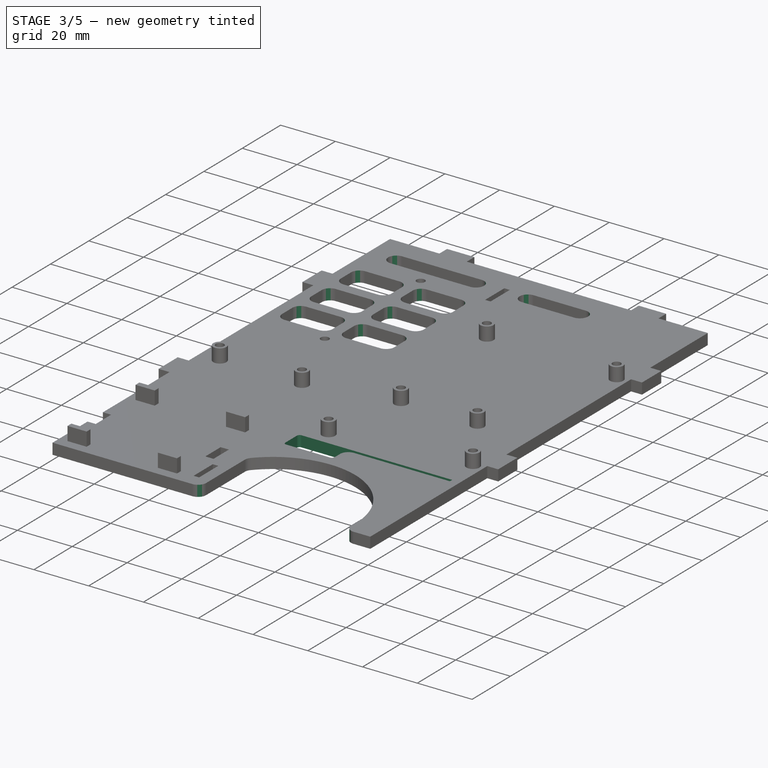
[diagram: stage 3 of 5 — iso view after this stage's code; geometry added in this stage tinted green]
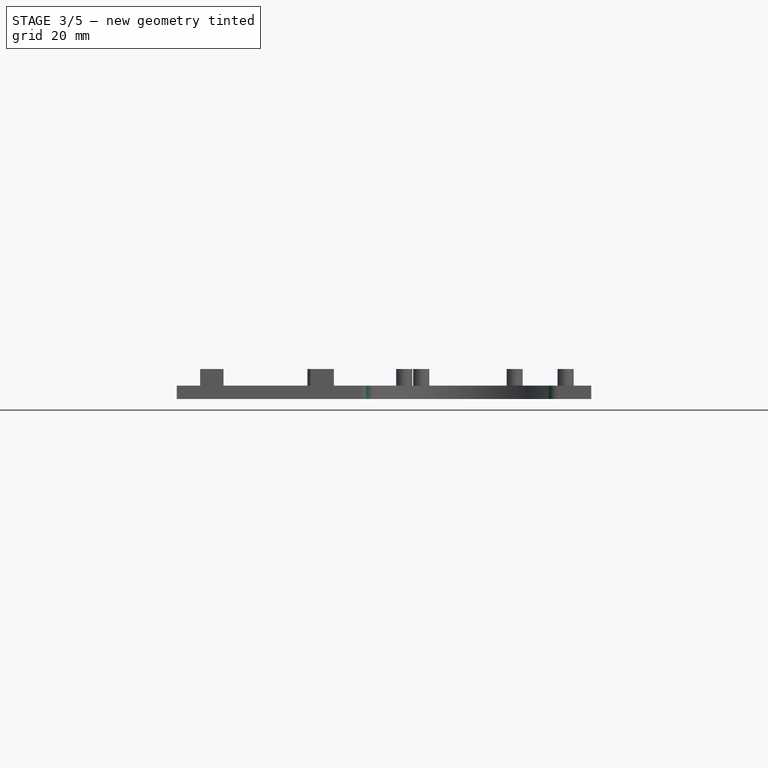
[diagram: stage 3 of 5 — front view after this stage's code; geometry added in this stage tinted green]
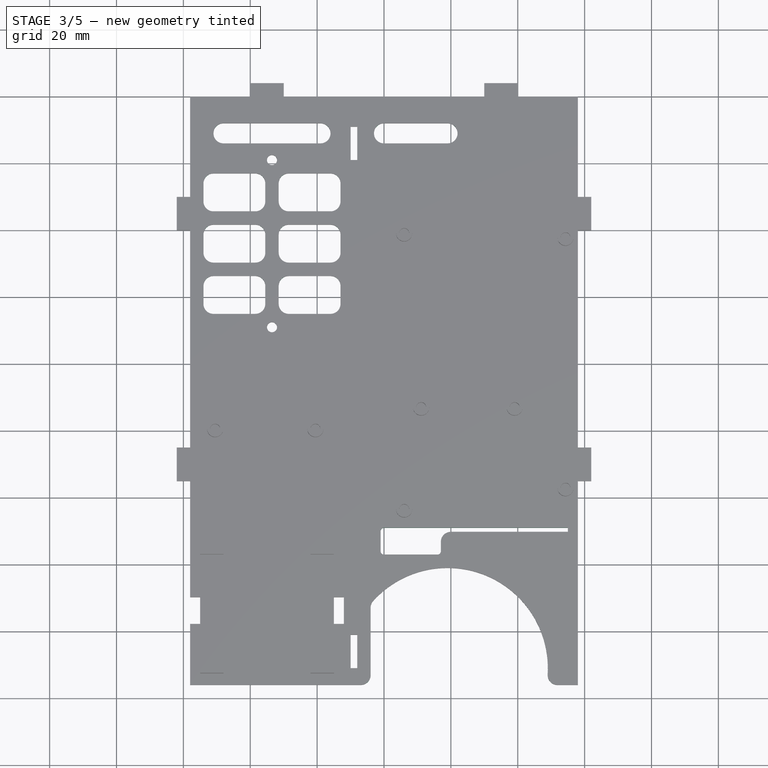
[diagram: stage 3 of 5 — top view after this stage's code; geometry added in this stage tinted green]
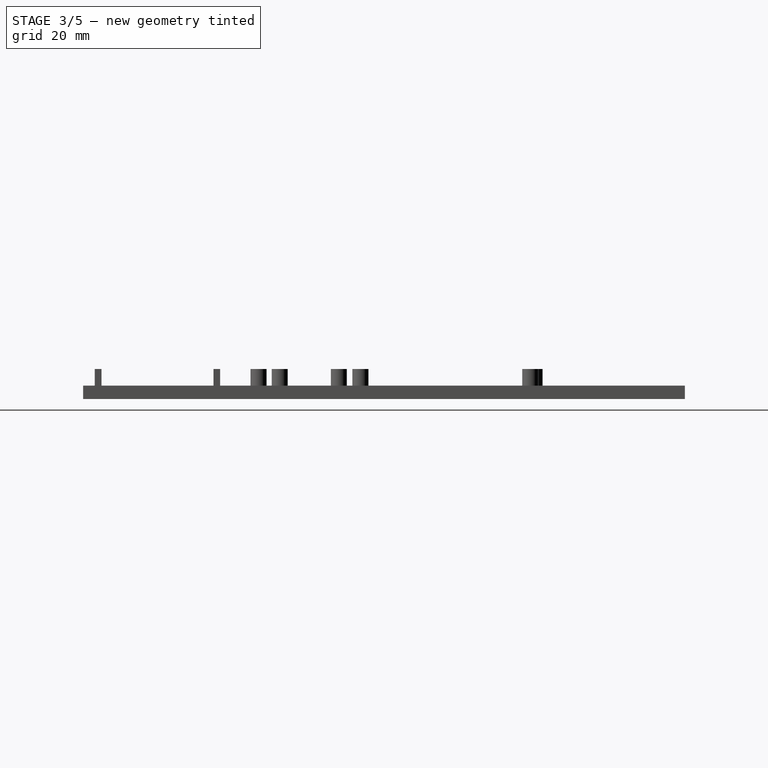
[diagram: stage 3 of 5 — right view after this stage's code; geometry added in this stage tinted green]
FEATURE [PartDesign::Pocket] Pocket006  label="ClipPocket"
  BaseFeature = -> Pocket005
  Length = 5
  Length2 = 100
  Profile = -> Sketch011
  Reversed = true
  Type = 1
FEATURE [Sketcher::SketchObject] Sketch014  label="DisplayCordHoleSketch"
  MapMode = 5
  Placement = pos=(0,0,2) rot=(0,0,1;0rad)
  Support = -> [DatumPlane005]
  sketch-geometry (6):
    g0: LineSegment StartX=-1 StartY=-9 StartZ=0 EndX=-1 EndY=-17 EndZ=0
    g1: LineSegment StartX=-1 StartY=-17 StartZ=0 EndX=17 EndY=-17 EndZ=0
    g2: LineSegment StartX=-1 StartY=-9 StartZ=0 EndX=55 EndY=-9 EndZ=0
    g3: LineSegment StartX=17 StartY=-17 StartZ=0 EndX=17 EndY=-10.2 EndZ=0
    g4: LineSegment StartX=17 StartY=-10.2 StartZ=0 EndX=55 EndY=-10.2 EndZ=0
    g5: LineSegment StartX=55 StartY=-10.2 StartZ=0 EndX=55 EndY=-9 EndZ=0
  constraints (18):
    c: Vertical(g0)
    c: Coincident(g1,g0)
    c: Horizontal(g1)
    c: Coincident(g2,g0)
    c: Horizontal(g2)
    c: Coincident(g3,g1)
    c: Vertical(g3)
    c: Coincident(g4,g3)
    c: Horizontal(g4)
    c: Coincident(g5,g4)
    c: Coincident(g5,g2)
    c: Vertical(g5)
    c: Distance(g0) = 8
    c: Distance(g1) = 18
    c: Distance(g5) = 1.2
    c: DistanceX(g-2,g2) = 55
    c: Distance(g2) = 56
    c: DistanceY(g-1,g2) = -9
FEATURE [PartDesign::Pocket] Pocket007  label="DisplayCordHolePocket"
  BaseFeature = -> Pocket006
  Length = 5
  Length2 = 100
  Midplane = true
  Profile = -> Sketch014
  Type = 1
FEATURE [PartDesign::Fillet] Fillet
  Base = -> Pocket007 [Edge227,Edge235,Edge245,Edge219,Edge211,Edge203,Edge226,Edge202,Edge234,Edge210,Edge244,Edge218,Edge247,Edge237,Edge229,Edge205,Edge213,Edge221,Edge231,Edge239,Edge249,Edge223,Edge215,Edge207,Edge267,Edge265,Edge269,Edge264,Edge251,Edge252,Edge254,Edge253,Edge138,Edge133,Edge141]
  BaseFeature = -> Pocket007
  Radius = 2.99
FEATURE [PartDesign::Fillet] Fillet001
  Base = -> Fillet [Edge239,Edge238,Edge241]
  BaseFeature = -> Fillet
  Radius = 1
FEATURE [PartDesign::Fillet] Fillet002
  Base = -> Fillet001 [Edge144]
  BaseFeature = -> Fillet001
  Radius = 3
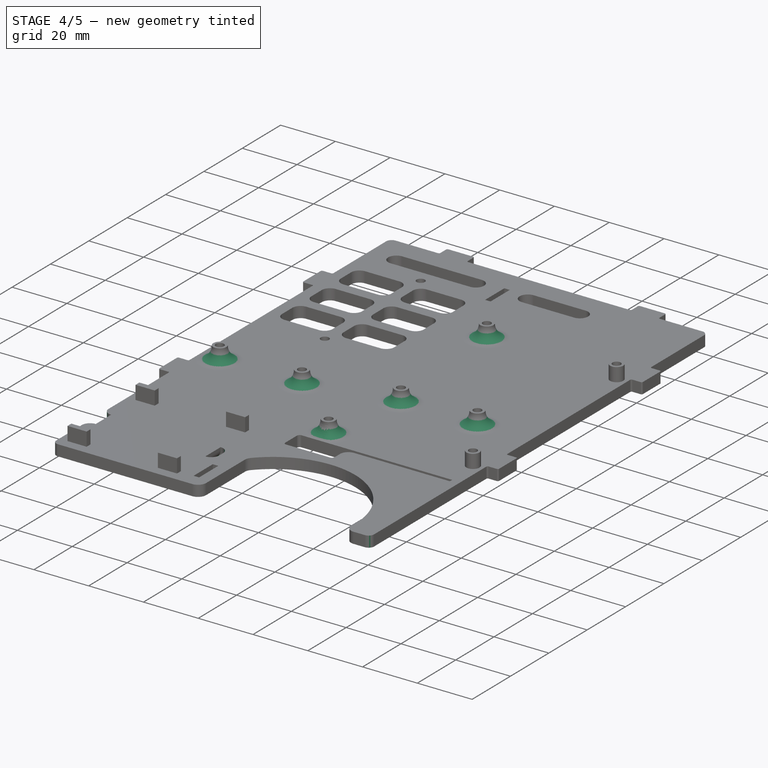
[diagram: stage 4 of 5 — iso view after this stage's code; geometry added in this stage tinted green]
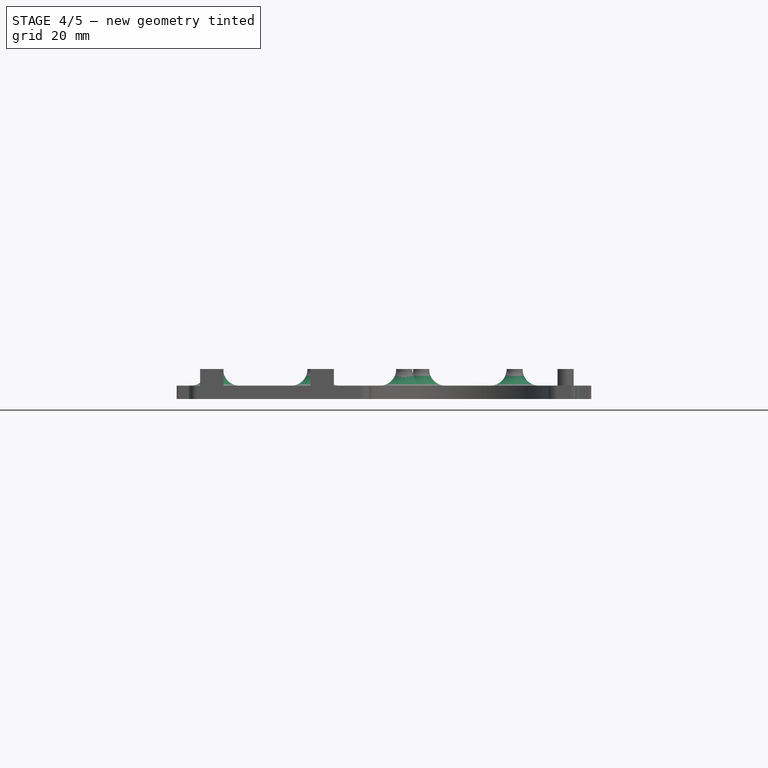
[diagram: stage 4 of 5 — front view after this stage's code; geometry added in this stage tinted green]
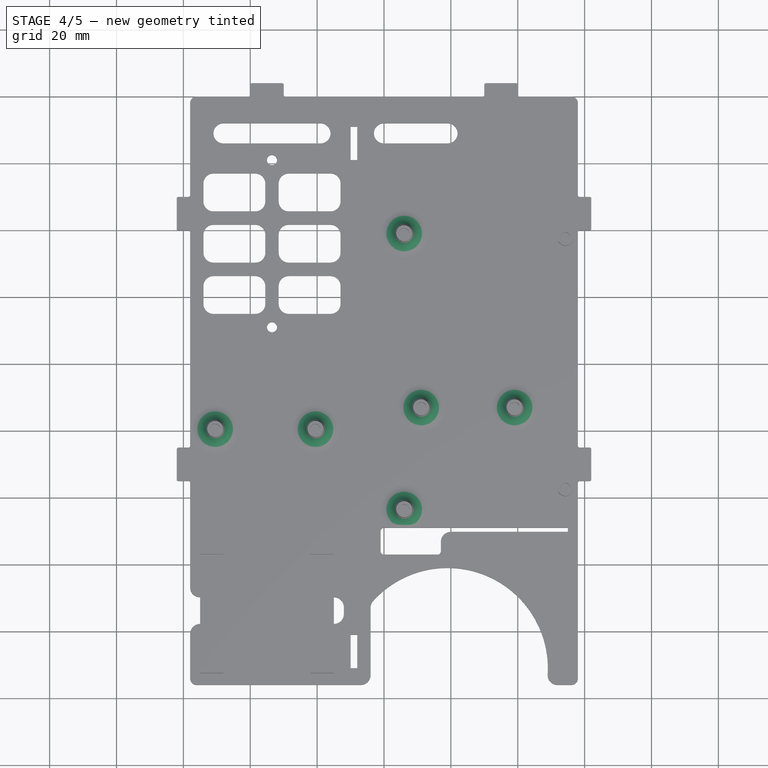
[diagram: stage 4 of 5 — top view after this stage's code; geometry added in this stage tinted green]
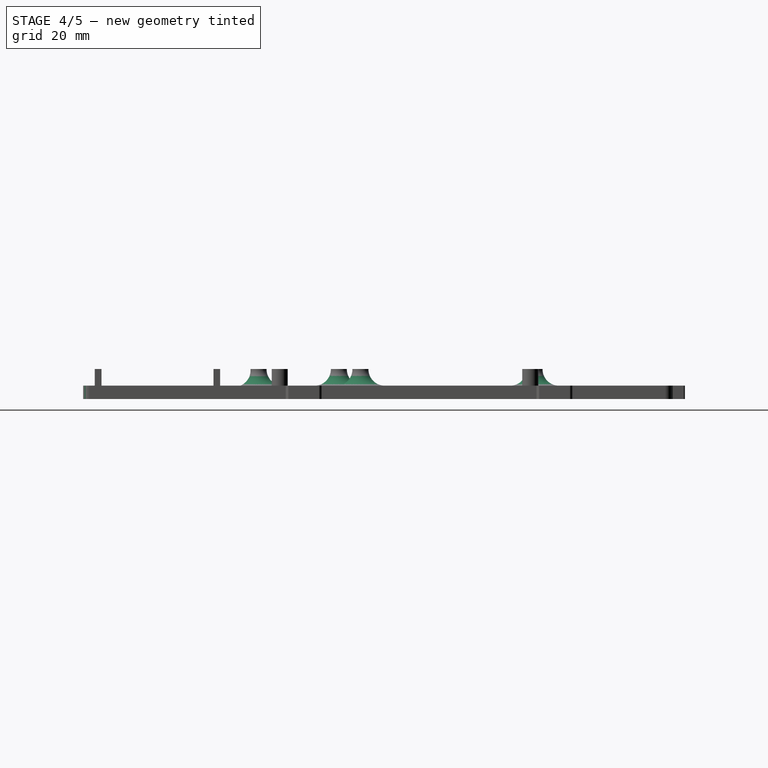
[diagram: stage 4 of 5 — right view after this stage's code; geometry added in this stage tinted green]
FEATURE [PartDesign::Fillet] Fillet003
  Base = -> Fillet002 [Edge174,Edge150,Edge209,Edge215]
  BaseFeature = -> Fillet002
  Radius = 2
FEATURE [PartDesign::Fillet] Fillet004
  Base = -> Fillet003 [Edge8,Edge59]
  BaseFeature = -> Fillet003
  Radius = 3
FEATURE [PartDesign::Fillet] Fillet005
  Base = -> Fillet004 [Edge147,Edge140,Edge402,Edge406]
  BaseFeature = -> Fillet004
  Radius = 2.99
FEATURE [PartDesign::Fillet] Fillet006
  Base = -> Fillet005 [Edge152,Edge157,Edge159,Edge163,Edge167,Edge181,Edge171,Edge176,Edge193,Edge197,Edge201,Edge205,Edge211,Edge215,Edge219,Edge223,Edge235,Edge236,Edge233,Edge229,Edge225,Edge220,Edge217,Edge213]
  BaseFeature = -> Fillet005
  Radius = 0.5
FEATURE [PartDesign::Fillet] Fillet007
  Base = -> Fillet006 [Edge522,Edge518,Edge520,Edge502,Edge501,Edge519]
  BaseFeature = -> Fillet006
  Radius = 4.9
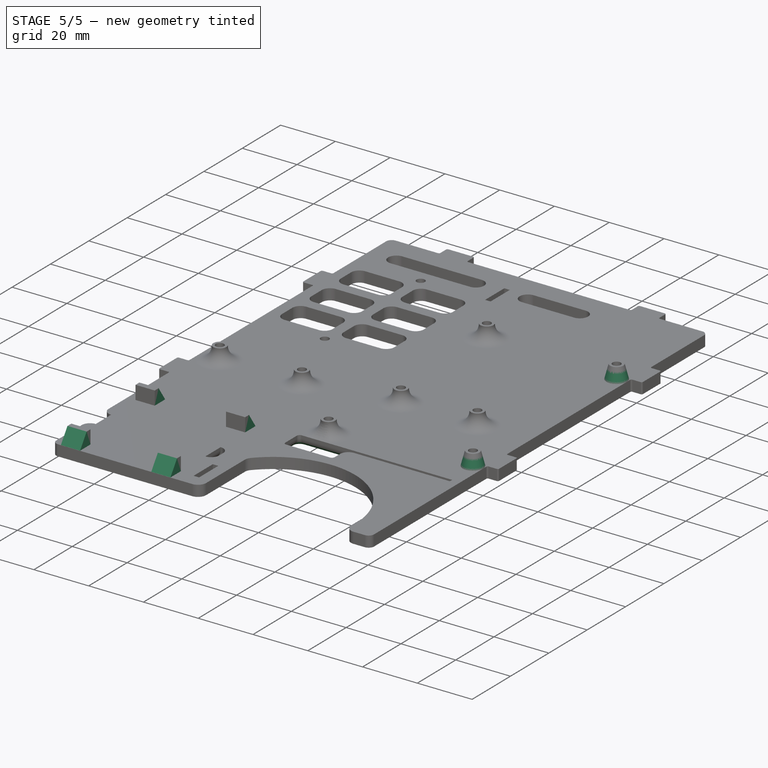
[diagram: stage 5 of 5 — iso view after this stage's code; geometry added in this stage tinted green]
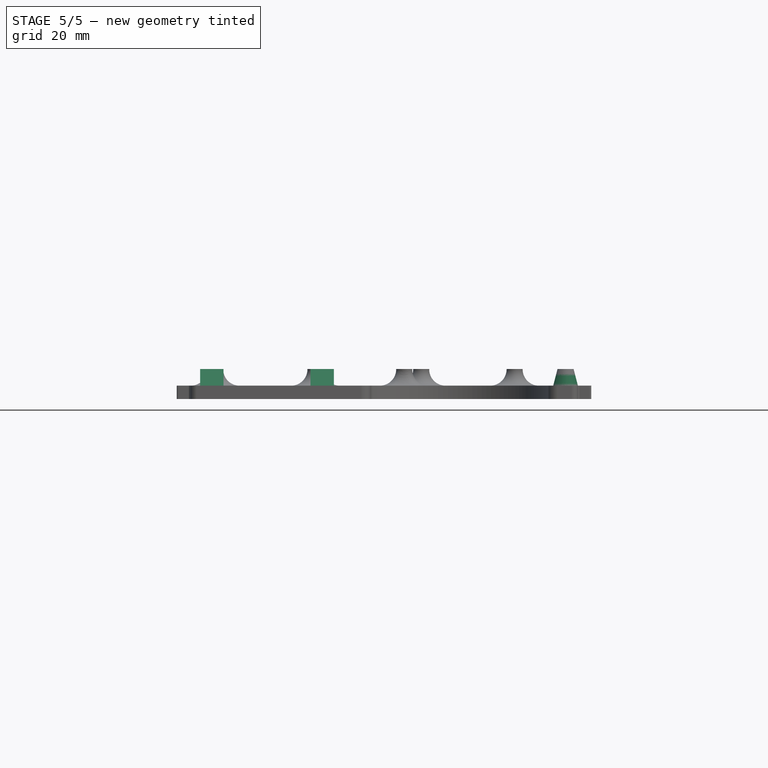
[diagram: stage 5 of 5 — front view after this stage's code; geometry added in this stage tinted green]
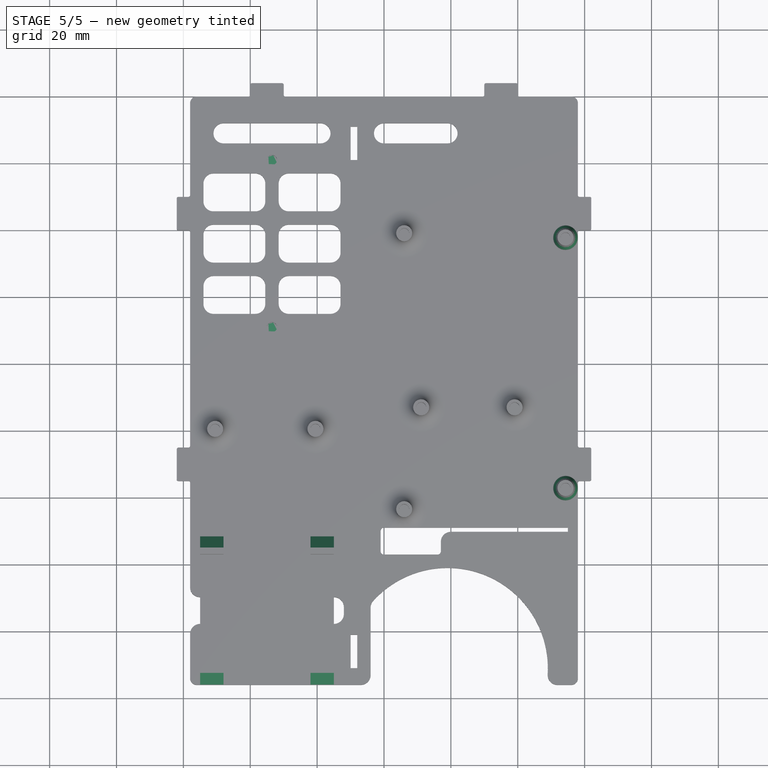
[diagram: stage 5 of 5 — top view after this stage's code; geometry added in this stage tinted green]
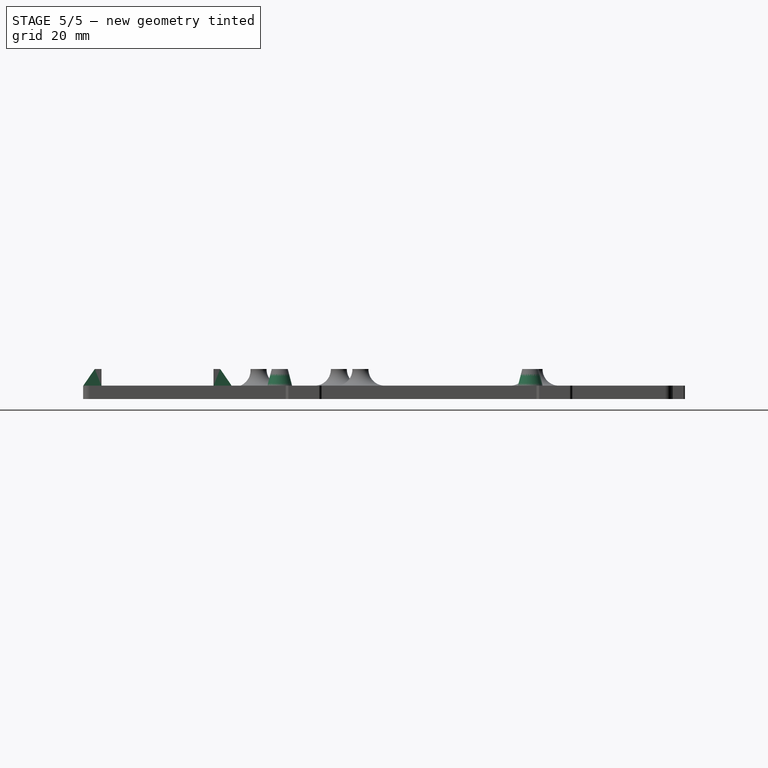
[diagram: stage 5 of 5 — right view after this stage's code; geometry added in this stage tinted green]
FEATURE [PartDesign::Draft] Draft
  Angle = 14.5
  Base = -> Fillet007 [Face53,Face52]
  BaseFeature = -> Fillet007
  NeutralPlane = -> Fillet007 [Face175]
FEATURE [PartDesign::Draft] Draft001
  Angle = 34.5
  Base = -> Draft [Face198,Face193,Face185,Face190]
  BaseFeature = -> Draft
  NeutralPlane = -> Draft [Face210]
  Reversed = true
FEATURE [PartDesign::Fillet] Fillet008
  Base = -> Draft001 [Edge5]
  BaseFeature = -> Draft001
  Radius = 3
FEATURE [PartDesign::Plane] DatumPlane006
  AttachmentOffset = pos=(0,0,-2) rot=(0,0,1;0rad)
  Length = 153.88
  MapMode = 5
  Placement = pos=(0,0,-2) rot=(0,0,1;0rad)
  ResizeMode = 0
  Support = -> [XY_Plane001]
  Width = 209.88
FEATURE [Sketcher::SketchObject] Sketch015
  MapMode = 5
  Placement = pos=(0,0,-2) rot=(0,0,1;0rad)
  Support = -> [DatumPlane006]
  sketch-geometry (8):
    g0: LineSegment StartX=-37.7593 StartY=104.373 StartZ=0 EndX=-29.7924 EndY=104.373 EndZ=0
    g1: LineSegment StartX=-29.7924 StartY=104.373 StartZ=0 EndX=-29.7924 EndY=97.5284 EndZ=0
    g2: LineSegment StartX=-29.7924 StartY=97.5284 StartZ=0 EndX=-37.7593 EndY=97.5284 EndZ=0
    g3: LineSegment StartX=-37.7593 StartY=97.5284 StartZ=0 EndX=-37.7593 EndY=104.373 EndZ=0
    g4: LineSegment StartX=-36.525 StartY=53.0931 StartZ=0 EndX=-27.997 EndY=53.0931 EndZ=0
    g5: LineSegment StartX=-27.997 StartY=53.0931 StartZ=0 EndX=-27.997 EndY=46.6971 EndZ=0
    g6: LineSegment StartX=-27.997 StartY=46.6971 StartZ=0 EndX=-36.525 EndY=46.6971 EndZ=0
    g7: LineSegment StartX=-36.525 StartY=46.6971 StartZ=0 EndX=-36.525 EndY=53.0931 EndZ=0
  constraints (16):
    c: Coincident(g0,g1)
    c: Coincident(g1,g2)
    c: Coincident(g2,g3)
    c: Coincident(g3,g0)
    c: Horizontal(g0)
    c: Horizontal(g2)
    c: Vertical(g1)
    c: Vertical(g3)
    c: Coincident(g4,g5)
    c: Coincident(g5,g6)
    c: Coincident(g6,g7)
    c: Coincident(g7,g4)
    c: Horizontal(g4)
    c: Horizontal(g6)
    c: Vertical(g5)
    c: Vertical(g7)
FEATURE [PartDesign::Pad] Pad004
  BaseFeature = -> Fillet008
  Length = 0.3
  Length2 = 100
  Profile = -> Sketch015
  Type = 0
FEATURE [PartDesign::Body] Body  label="BlockBody"
  Group = -> [Sketch,Pad,Sketch004,Sketch005,Pocket001,Pocket,Sketch006,DatumPlane,Pad001,Sketch007,DatumPlane001,Pocket002,Sketch008,DatumPlane002,Pad002,DatumPlane003,Sketch009,Pocket003,Sketch010,Pad003,DatumPlane004,Sketch011,Sketch012,Pocket004,DatumPlane005,Sketch013,Pocket005,Pocket006,Sketch014,Pocket007,Fillet,Fillet001,Fillet002,Fillet003,Fillet004,Fillet005,Fillet006,Fillet007,Draft,Draft001,+4 more]
  Origin = -> Origin001
  Tip = -> Pad004
FEATURE [App::Part] Part  label="BlockPart"
  Group = -> [Body]
  Origin = -> Origin
FEATURE [Part::FeaturePython] refine  label="BlockBody_Refined"  # WARN: FeaturePython — macro-defined, semantics opaque (R4)
  Base = -> Body
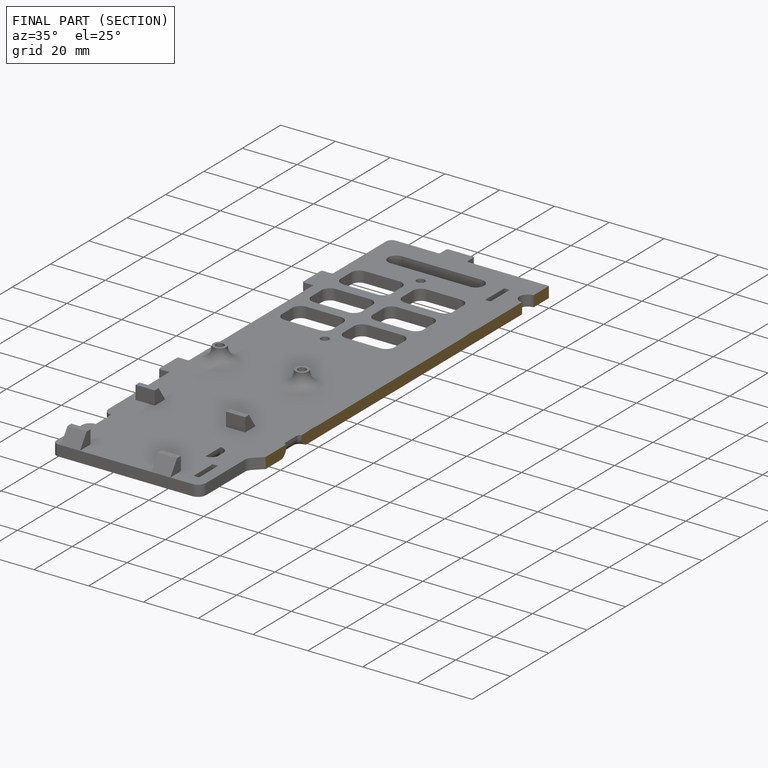
[diagram: finished part — half-section view (interior)]
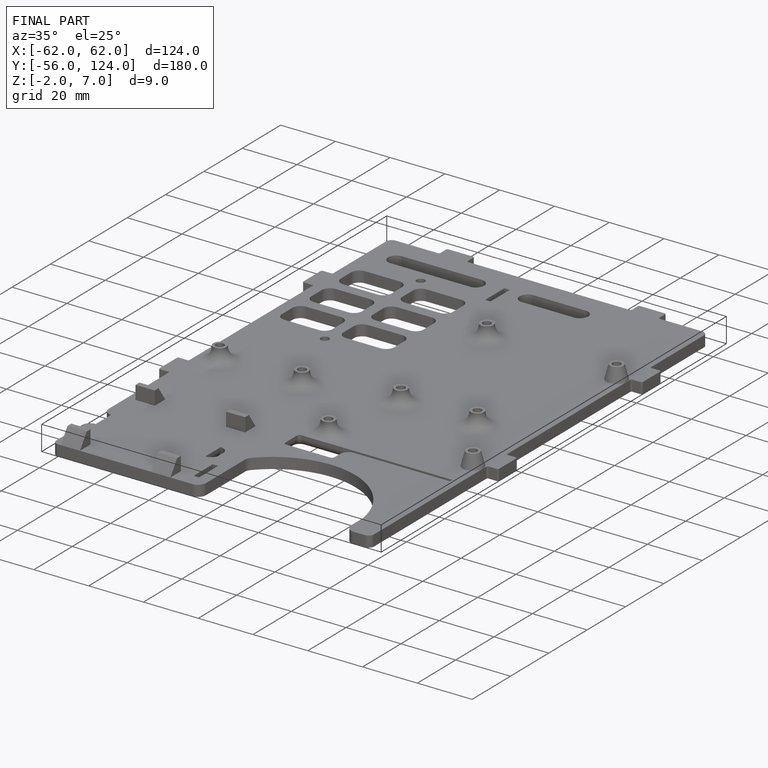
[diagram: finished part — iso view with bounding-box wireframe]
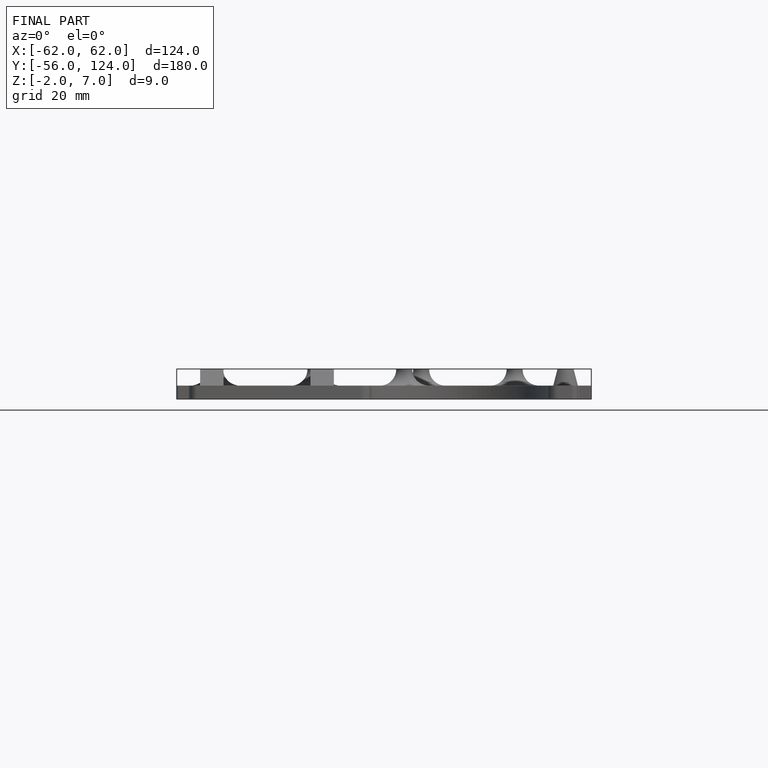
[diagram: finished part — front view with bounding-box wireframe]
